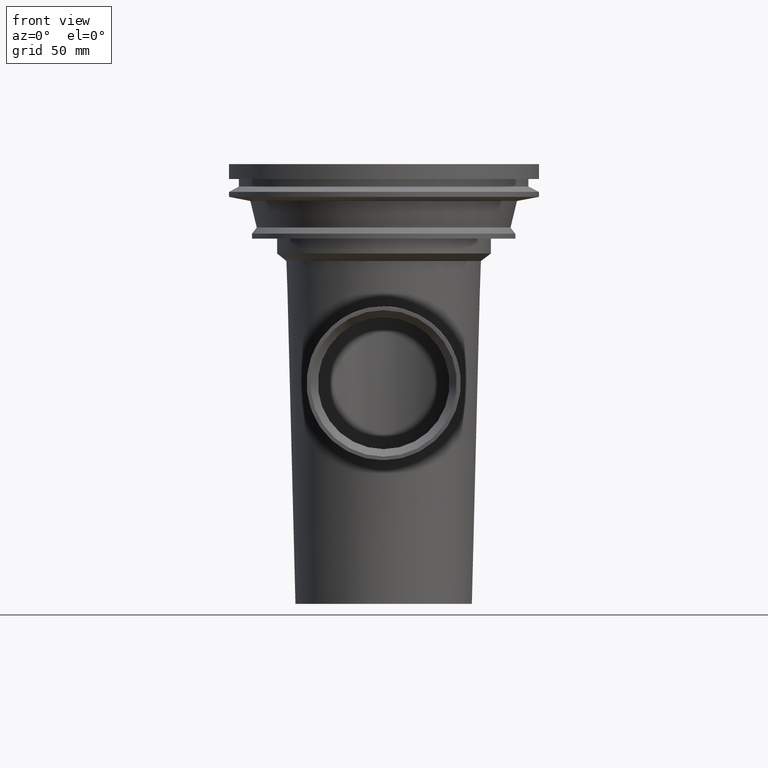
[diagram: clean part render]
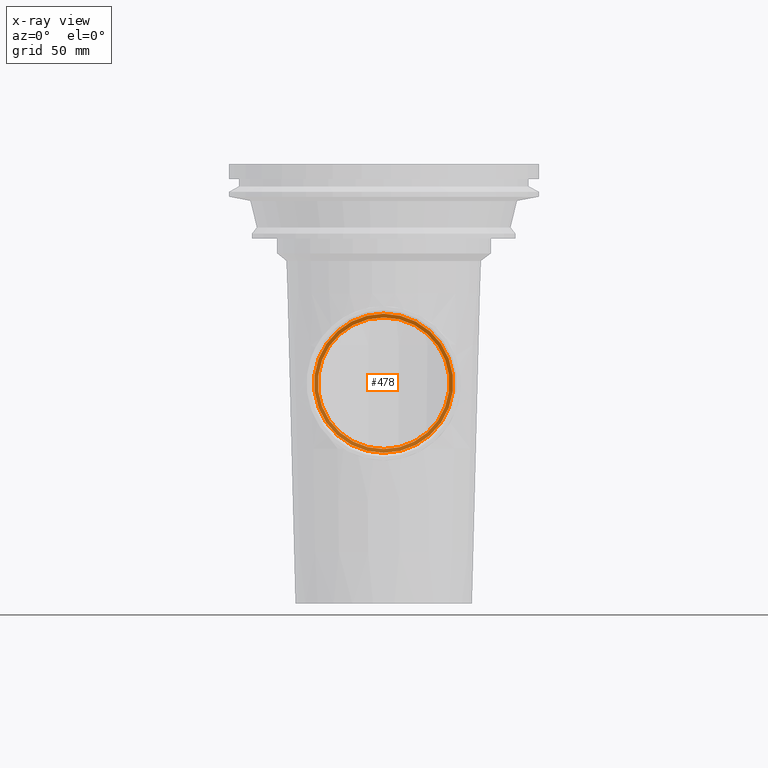
[diagram: x-ray — body ghosted, one internal face saturated and labeled with its STEP entity id]
A machine part, front view, then the same camera in x-ray: the body is ghosted and one INTERNAL B-rep face — a face not visible from any outside direction — is saturated and labeled: STEP entity #478.
In plain terms, the highlighted planar face has unit normal (0, 1, 0).
Its self-contained STEP definition (entity closure, byte-faithful):
#27=PLANE('',#564);
#108=ORIENTED_EDGE('',*,*,#139,.T.);
#109=ORIENTED_EDGE('',*,*,#167,.F.);
#139=EDGE_CURVE('',#182,#182,#224,.T.);
#167=EDGE_CURVE('',#210,#210,#251,.T.);
#182=VERTEX_POINT('',#818);
#210=VERTEX_POINT('',#954);
#224=CIRCLE('',#511,28.);
#251=CIRCLE('',#565,26.5);
#321=EDGE_LOOP('',(#108));
#322=EDGE_LOOP('',(#109));
#407=FACE_BOUND('',#321,.T.);
#408=FACE_BOUND('',#322,.T.);
#478=ADVANCED_FACE('',(#407,#408),#27,.T.);
#511=AXIS2_PLACEMENT_3D('',#817,#603,#604);
#564=AXIS2_PLACEMENT_3D('',#952,#709,#710);
#565=AXIS2_PLACEMENT_3D('',#953,#711,#712);
#603=DIRECTION('',(0.,1.,0.));
#604=DIRECTION('',(0.,0.,1.));
#709=DIRECTION('',(0.,1.,0.));
#710=DIRECTION('',(0.,0.,1.));
#711=DIRECTION('',(0.,1.,0.));
#712=DIRECTION('',(0.,0.,1.));
#817=CARTESIAN_POINT('',(0.,-36.,-88.25));
#818=CARTESIAN_POINT('',(0.,-36.,-60.25));
#952=CARTESIAN_POINT('',(0.,-36.,-61.75));
#953=CARTESIAN_POINT('',(0.,-36.,-88.25));
#954=CARTESIAN_POINT('',(0.,-36.,-61.75));